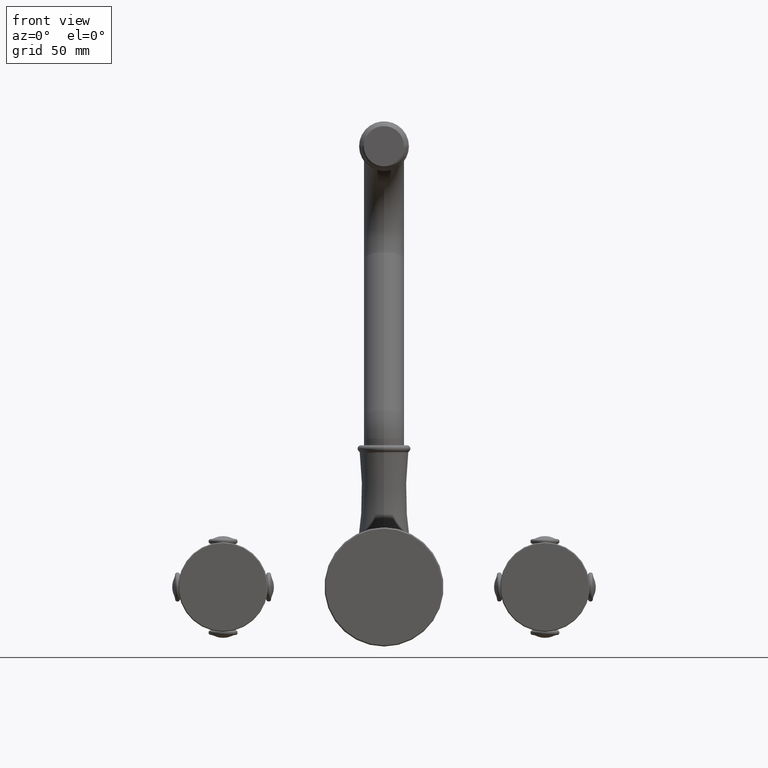
[diagram: clean part render]
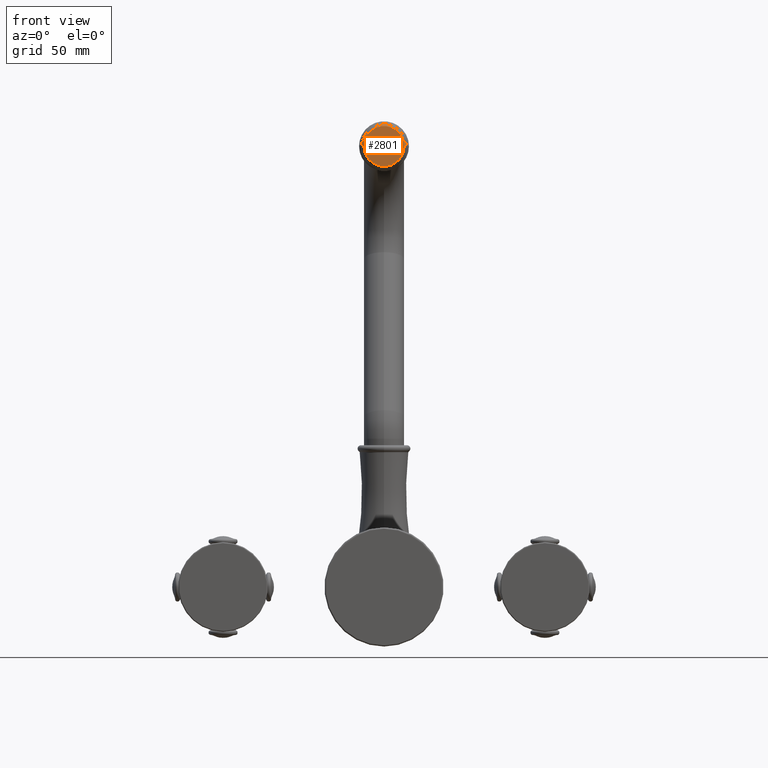
[diagram: same view with one face highlighted and labeled with its STEP entity id]
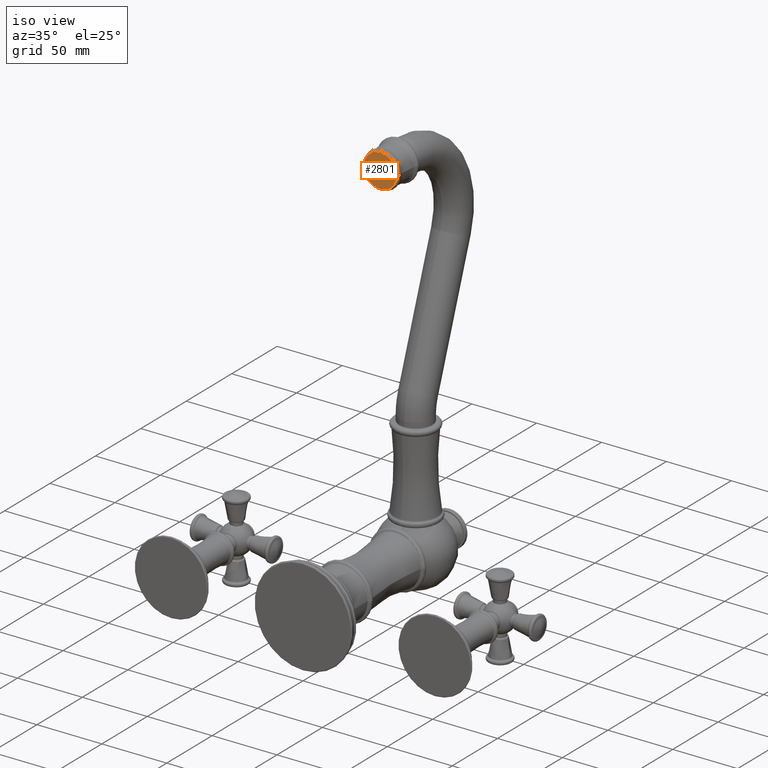
[diagram: same view with one face highlighted and labeled with its STEP entity id]
A machine part, front view. The second image highlights one B-rep face of the part: STEP entity #2801.
A second angle (iso view) of the same face is appended — the face is thin or edge-on in the first view.
In plain terms, the highlighted planar face has unit normal (0, -1, 0).
Its self-contained STEP definition (entity closure, byte-faithful):
#1009=CARTESIAN_POINT('',(0.E0,3.346470113780E0,1.095528E1));
#1010=DIRECTION('',(0.E0,1.E0,0.E0));
#1011=DIRECTION('',(1.E0,0.E0,0.E0));
#1012=AXIS2_PLACEMENT_3D('',#1009,#1010,#1011);
#1024=CARTESIAN_POINT('',(0.E0,3.346470113780E0,1.095528E1));
#1025=DIRECTION('',(0.E0,-1.E0,0.E0));
#1026=DIRECTION('',(1.E0,0.E0,0.E0));
#1027=AXIS2_PLACEMENT_3D('',#1024,#1025,#1026);
#1259=CARTESIAN_POINT('',(5.E-1,3.346470113780E0,1.095528E1));
#1260=CARTESIAN_POINT('',(-5.E-1,3.346470113780E0,1.095528E1));
#1261=VERTEX_POINT('',#1259);
#1262=VERTEX_POINT('',#1260);
#2791=CARTESIAN_POINT('',(0.E0,3.346470113780E0,1.095528E1));
#2792=DIRECTION('',(0.E0,-1.E0,0.E0));
#2793=DIRECTION('',(-1.E0,0.E0,0.E0));
#2794=AXIS2_PLACEMENT_3D('',#2791,#2792,#2793);
#2795=PLANE('',#2794);
#2797=ORIENTED_EDGE('',*,*,#2796,.F.);
#2798=ORIENTED_EDGE('',*,*,#2781,.T.);
#2799=EDGE_LOOP('',(#2797,#2798));
#2800=FACE_OUTER_BOUND('',#2799,.F.);
#2801=ADVANCED_FACE('',(#2800),#2795,.T.);
#1013=CIRCLE('',#1012,5.E-1);
#1028=CIRCLE('',#1027,5.E-1);
#2781=EDGE_CURVE('',#1261,#1262,#1013,.T.);
#2796=EDGE_CURVE('',#1261,#1262,#1028,.T.);